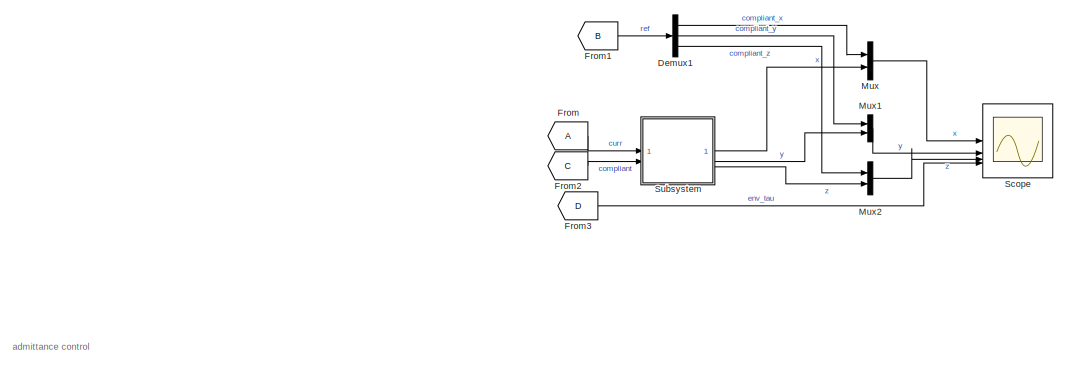
[diagram: root canvas - part 1/4, top right region]
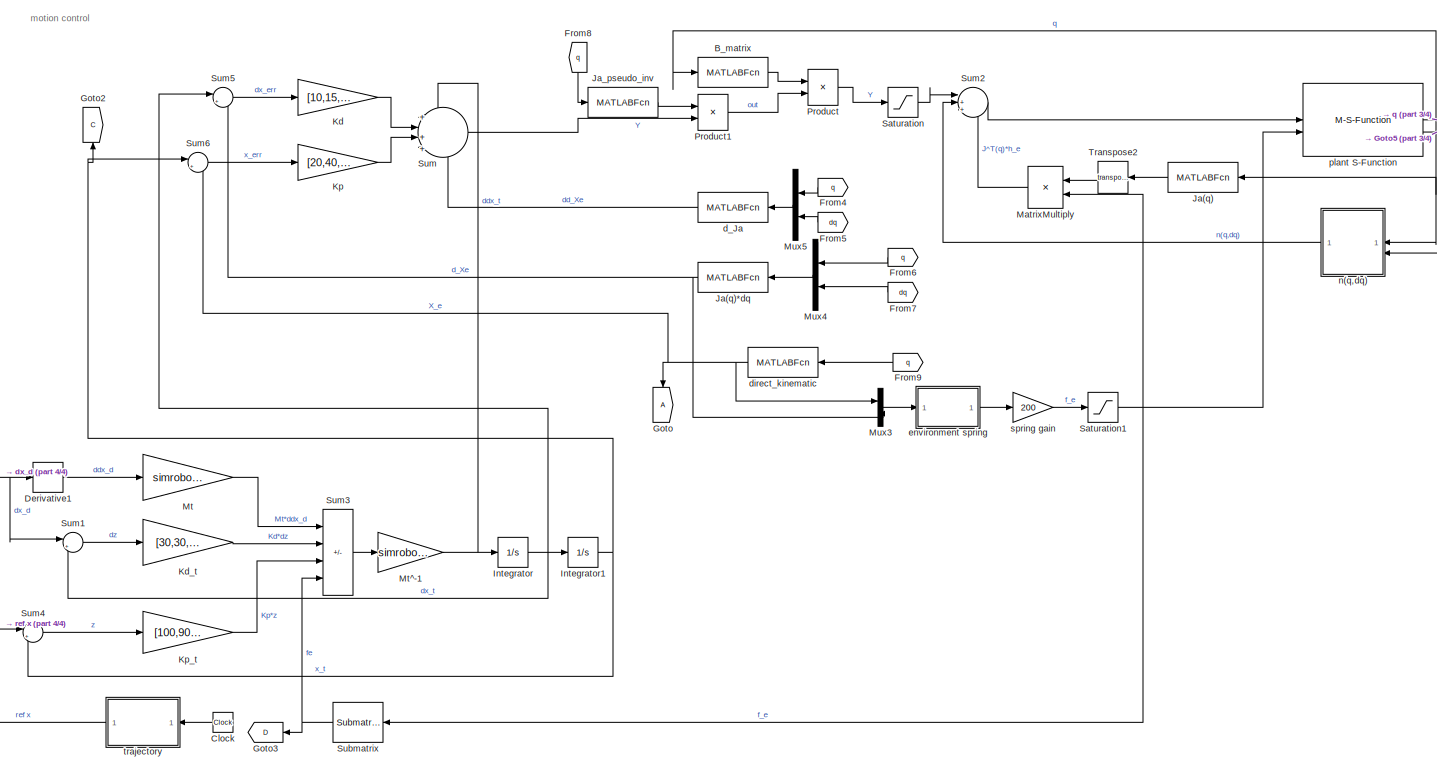
[diagram: root canvas - part 2/4, full width, bottom band]
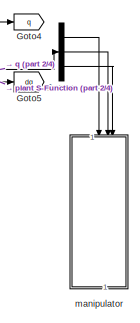
[diagram: root canvas - part 3/4, middle right region]
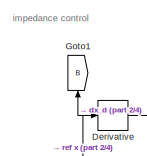
[diagram: root canvas - part 4/4, bottom left region]
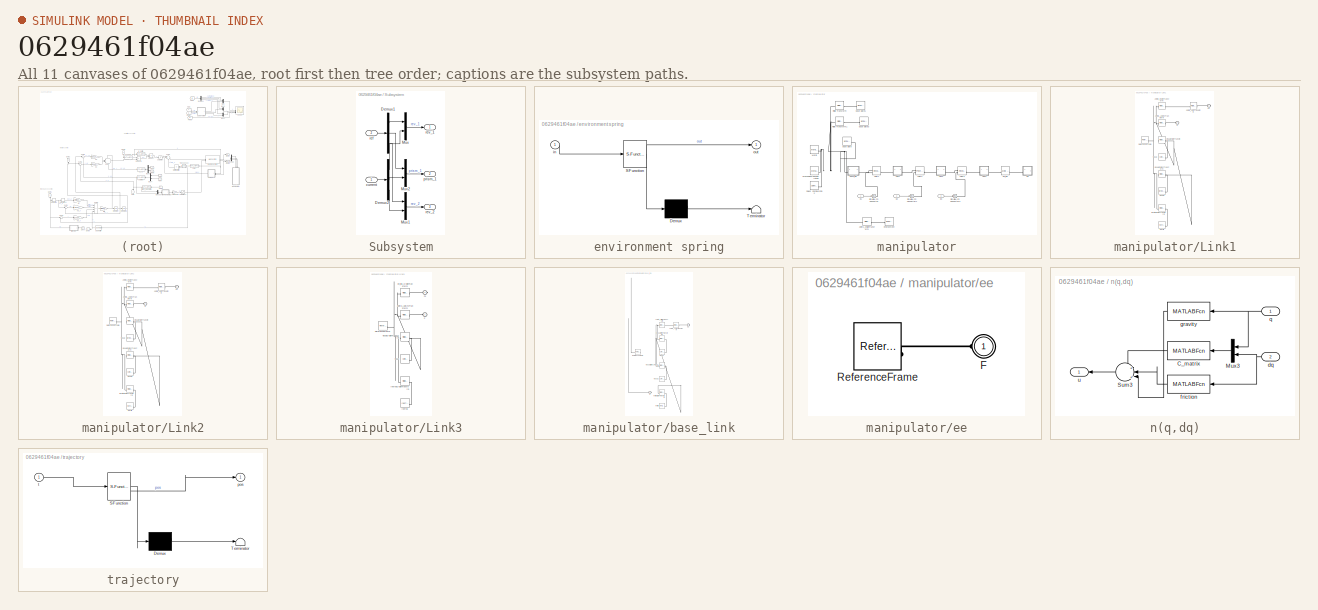
[diagram: thumbnail index - all 11 canvases of the model, root first then tree order]
MODEL slx_0629461f04ae
KIND model
CONFIG AbsTol = auto
CONFIG EnableMultiTasking = off
CONFIG FixedStep = 0.001
CONFIG MaxStep = 0.001
CONFIG MinStep = auto
CONFIG RelTol = auto
CONFIG SampleTimeConstraint = Unconstrained
CONFIG SolverName = FixedStepAuto
CONFIG StartTime = 0.0
CONFIG StopTime = 20
WORKSPACE source: mxarray member
WORKSPACE Var = 0
BLOCK [MATLABFcn] B_matrix
  MATLABFcn = simrobot.dynamic.B_matrix(u(1),u(2),u(3))
  NameLocation = top
  Output1D = off
  OutputSignalType = real
BLOCK [Clock] Clock
  NameLocation = top
BLOCK [Demux] Demux
  Outputs = 3
BLOCK [Demux] Demux1
  Outputs = 3
BLOCK [Derivative] Derivative
BLOCK [Derivative] Derivative1
BLOCK [From] From
BLOCK [From] From1
  GotoTag = B
BLOCK [From] From2
  GotoTag = C
BLOCK [From] From3
  GotoTag = D
BLOCK [From] From4
  GotoTag = q
  NameLocation = top
BLOCK [From] From5
  GotoTag = dq
  NameLocation = top
BLOCK [From] From6
  GotoTag = q
  NameLocation = top
BLOCK [From] From7
  GotoTag = dq
  NameLocation = top
BLOCK [From] From8
  GotoTag = q
  NameLocation = left
BLOCK [From] From9
  GotoTag = q
  NameLocation = top
BLOCK [Goto] Goto
  NameLocation = left
BLOCK [Goto] Goto1
  GotoTag = B
  NameLocation = right
BLOCK [Goto] Goto2
  GotoTag = C
  NameLocation = right
BLOCK [Goto] Goto3
  GotoTag = D
  NameLocation = top
BLOCK [Goto] Goto4
  GotoTag = q
BLOCK [Goto] Goto5
  GotoTag = dq
BLOCK [Integrator] Integrator
BLOCK [Integrator] Integrator1
BLOCK [MATLABFcn] Ja(q)
  MATLABFcn = simrobot.kinematic.jacobian_geometric(u(1),u(2),u(3))
  NameLocation = top
  Output1D = off
  OutputSignalType = real
BLOCK [MATLABFcn] Ja(q)*dq
  MATLABFcn = eye(3,6)*simrobot.kinematic.jacobian_analytical(u(1),u(2),u(3))*[u(4),u(5),u(6)]'
  NameLocation = top
  Output1D = off
  OutputSignalType = real
BLOCK [MATLABFcn] Ja_pseudo_inv
  MATLABFcn = simrobot.kinematic.jacobian_analytical_pseudoinv(u(1),u(2),u(3))
  NameLocation = top
  Output1D = off
  OutputSignalType = real
BLOCK [Gain] Kd
  Gain = [10,15,10]'
BLOCK [Gain] Kd_t
  Gain = [30,30,60]'
BLOCK [Gain] Kp
  Gain = [20,40,10]'
BLOCK [Gain] Kp_t
  Gain = [100,90,90]'
BLOCK [Product] MatrixMultiply
  Multiplication = Matrix(*)
  NameLocation = top
BLOCK [Gain] Mt
  Gain = simrobot.dynamic.Mt
BLOCK [Gain] Mt^-1
  Gain = simrobot.dynamic.inv_Mt
BLOCK [Mux] Mux
  DisplayOption = bar
  Inputs = 2
BLOCK [Mux] Mux1
  DisplayOption = bar
  Inputs = 2
BLOCK [Mux] Mux2
  DisplayOption = bar
  Inputs = 2
BLOCK [Mux] Mux3
  DisplayOption = bar
  Inputs = 2
BLOCK [Mux] Mux4
  DisplayOption = bar
  Inputs = 2
  NameLocation = top
BLOCK [Mux] Mux5
  DisplayOption = bar
  Inputs = 2
  NameLocation = top
BLOCK [Product] Product
  Multiplication = Matrix(*)
BLOCK [Product] Product1
  Multiplication = Matrix(*)
BLOCK [Saturate] Saturation
  LowerLimit = -100
  UpperLimit = 100
BLOCK [Saturate] Saturation1
  LowerLimit = -10
  UpperLimit = 10
BLOCK [Scope] Scope
  Floating = off
  NumInputPorts = 4
  ScopeSpecificationString = Simulink.scopes.TimeScopeBlockCfg('CurrentConfiguration', extmgr.ConfigurationSet(extmgr.Configuration('Core','General UI',true),extmgr.Configuration('Core','Source UI',true),extmgr.Configuration('Sources','WiredSimulink',true),extmgr.Configuration('Visuals','Time Domain',true,'SerializedDisplays',{struct('MinYLimReal','-0.53833','MaxYLimReal','0.02833','YLabelReal','','MinYLimMag','0.00000','MaxY...<+3589ch>
BLOCK [Reference] Submatrix  REF=matrix_library/Submatrix
  LibrarySourceBlock = simulink/Matrix\nOperations/Submatrix
  NameLocation = top
  SourceBlock = matrix_library/Submatrix
  SourceType = Submatrix
BLOCK [SubSystem] Subsystem
BLOCK [Demux] Subsystem/Demux1
  Outputs = 3
BLOCK [Demux] Subsystem/Demux2
  Outputs = 3
BLOCK [Mux] Subsystem/Mux
  DisplayOption = bar
  Inputs = 2
BLOCK [Mux] Subsystem/Mux1
  DisplayOption = bar
  Inputs = 2
BLOCK [Mux] Subsystem/Mux2
  DisplayOption = bar
  Inputs = 2
BLOCK [Inport] Subsystem/current
BLOCK [Outport] Subsystem/prism_1
  Port = 2
BLOCK [Inport] Subsystem/ref
  Port = 2
BLOCK [Outport] Subsystem/rev_1
BLOCK [Outport] Subsystem/rev_2
  Port = 3
BLOCK [Sum] Sum
  Inputs = +|+|+|-
BLOCK [Sum] Sum1
  Inputs = |+-
BLOCK [Sum] Sum2
  Inputs = |+++
BLOCK [Sum] Sum3
  IconShape = rectangular
  Inputs = +++-
BLOCK [Sum] Sum4
  Inputs = |+-
BLOCK [Sum] Sum5
  Inputs = |+-
BLOCK [Sum] Sum6
  Inputs = |+-
BLOCK [Math] Transpose2
  NameLocation = top
  Operator = transpose
BLOCK [MATLABFcn] d_Ja
  MATLABFcn = eye(3,6)*simrobot.kinematic.d_jacobian_analytical(u(1),u(2),u(3),u(4),u(5),u(6))*[u(4),u(5),u(6)]'
  NameLocation = top
  Output1D = off
  OutputSignalType = real
BLOCK [MATLABFcn] direct_kinematic
  MATLABFcn = [1,0,0,0;0,1,0,0;0,0,1,0]*simrobot.kinematic.direct_kin(u(1),u(2),u(3))*[0,0,0,1]'
  NameLocation = top
  Output1D = off
BLOCK [SubSystem] environment spring
  ErrorFcn = Stateflow.Translate.translate
  PermitHierarchicalResolution = ExplicitOnly
  SFBlockType = MATLAB Function
  TreatAsAtomicUnit = on
BLOCK [Demux] environment spring/ Demux 
  Outputs = 1
BLOCK [S-Function] environment spring/ SFunction 
  EnableBusSupport = on
  FunctionName = sf_sfun
  PortCounts = [1 2]
  SFcnIsStateOwnerBlock = off
  SFunctionDeploymentMode = off
  Tag = Stateflow S-Function 1
BLOCK [Terminator] environment spring/ Terminator 
BLOCK [Inport] environment spring/in
BLOCK [Outport] environment spring/out
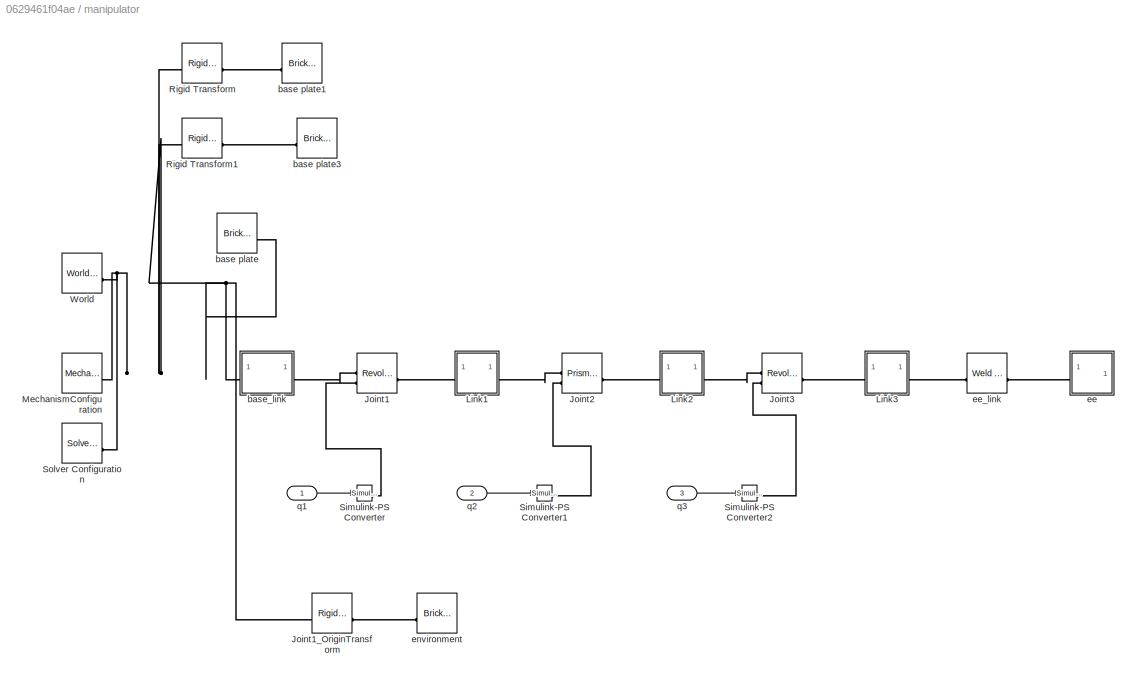
BLOCK [SubSystem] manipulator
BLOCK [Reference] manipulator/Joint1  REF=sm_lib/Joints/Revolute Joint
  SourceBlock = sm_lib/Joints/Revolute Joint
  SourceType = Revolute Joint
BLOCK [Reference] manipulator/Joint1_OriginTransform  REF=sm_lib/Frames and
Transforms/Rigid
Transform
  SourceBlock = sm_lib/Frames and\nTransforms/Rigid\nTransform
  SourceType = Rigid\nTransform
BLOCK [Reference] manipulator/Joint2  REF=sm_lib/Joints/Prismatic
Joint
  SourceBlock = sm_lib/Joints/Prismatic\nJoint
  SourceType = Prismatic\nJoint
BLOCK [Reference] manipulator/Joint3  REF=sm_lib/Joints/Revolute Joint
  SourceBlock = sm_lib/Joints/Revolute Joint
  SourceType = Revolute Joint
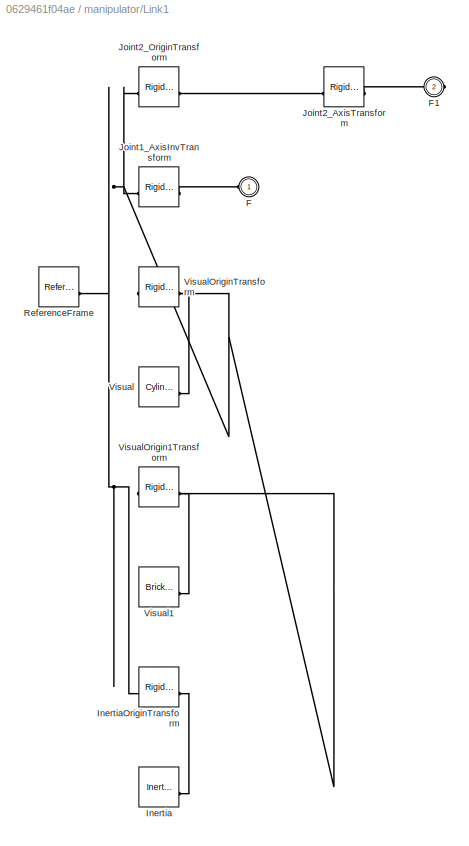
BLOCK [SubSystem] manipulator/Link1
BLOCK [PMIOPort] manipulator/Link1/F
  Side = Left
BLOCK [PMIOPort] manipulator/Link1/F1
  Port = 2
  Side = Right
BLOCK [Reference] manipulator/Link1/Inertia  REF=sm_lib/Body Elements/Inertia
  SourceBlock = sm_lib/Body Elements/Inertia
  SourceType = Inertia
BLOCK [Reference] manipulator/Link1/InertiaOriginTransform  REF=sm_lib/Frames and
Transforms/Rigid
Transform
  SourceBlock = sm_lib/Frames and\nTransforms/Rigid\nTransform
  SourceType = Rigid\nTransform
BLOCK [Reference] manipulator/Link1/Joint1_AxisInvTransform  REF=sm_lib/Frames and
Transforms/Rigid
Transform
  SourceBlock = sm_lib/Frames and\nTransforms/Rigid\nTransform
  SourceType = Rigid\nTransform
BLOCK [Reference] manipulator/Link1/Joint2_AxisTransform  REF=sm_lib/Frames and
Transforms/Rigid
Transform
  SourceBlock = sm_lib/Frames and\nTransforms/Rigid\nTransform
  SourceType = Rigid\nTransform
BLOCK [Reference] manipulator/Link1/Joint2_OriginTransform  REF=sm_lib/Frames and
Transforms/Rigid
Transform
  SourceBlock = sm_lib/Frames and\nTransforms/Rigid\nTransform
  SourceType = Rigid\nTransform
BLOCK [Reference] manipulator/Link1/ReferenceFrame  REF=sm_lib/Frames and
Transforms/Reference
Frame
  SourceBlock = sm_lib/Frames and\nTransforms/Reference\nFrame
  SourceType = Reference\nFrame
BLOCK [Reference] manipulator/Link1/Visual  REF=sm_lib/Body Elements/Cylindrical Solid
  SourceBlock = sm_lib/Body Elements/Cylindrical Solid
  SourceType = Cylindrical Solid
BLOCK [Reference] manipulator/Link1/Visual1  REF=sm_lib/Body Elements/Brick Solid
  SourceBlock = sm_lib/Body Elements/Brick Solid
  SourceType = Brick Solid
BLOCK [Reference] manipulator/Link1/VisualOrigin1Transform  REF=sm_lib/Frames and
Transforms/Rigid
Transform
  SourceBlock = sm_lib/Frames and\nTransforms/Rigid\nTransform
  SourceType = Rigid\nTransform
BLOCK [Reference] manipulator/Link1/VisualOriginTransform  REF=sm_lib/Frames and
Transforms/Rigid
Transform
  SourceBlock = sm_lib/Frames and\nTransforms/Rigid\nTransform
  SourceType = Rigid\nTransform
BLOCK [SubSystem] manipulator/Link2
BLOCK [PMIOPort] manipulator/Link2/F
  Side = Left
BLOCK [PMIOPort] manipulator/Link2/F1
  Port = 2
  Side = Right
BLOCK [Reference] manipulator/Link2/Inertia  REF=sm_lib/Body Elements/Inertia
  SourceBlock = sm_lib/Body Elements/Inertia
  SourceType = Inertia
BLOCK [Reference] manipulator/Link2/InertiaOriginTransform  REF=sm_lib/Frames and
Transforms/Rigid
Transform
  SourceBlock = sm_lib/Frames and\nTransforms/Rigid\nTransform
  SourceType = Rigid\nTransform
BLOCK [Reference] manipulator/Link2/Joint2_AxisInvTransform  REF=sm_lib/Frames and
Transforms/Rigid
Transform
  SourceBlock = sm_lib/Frames and\nTransforms/Rigid\nTransform
  SourceType = Rigid\nTransform
BLOCK [Reference] manipulator/Link2/Joint3_AxisTransform  REF=sm_lib/Frames and
Transforms/Rigid
Transform
  SourceBlock = sm_lib/Frames and\nTransforms/Rigid\nTransform
  SourceType = Rigid\nTransform
BLOCK [Reference] manipulator/Link2/Joint3_OriginTransform  REF=sm_lib/Frames and
Transforms/Rigid
Transform
  SourceBlock = sm_lib/Frames and\nTransforms/Rigid\nTransform
  SourceType = Rigid\nTransform
BLOCK [Reference] manipulator/Link2/ReferenceFrame  REF=sm_lib/Frames and
Transforms/Reference
Frame
  SourceBlock = sm_lib/Frames and\nTransforms/Reference\nFrame
  SourceType = Reference\nFrame
BLOCK [Reference] manipulator/Link2/Visual  REF=sm_lib/Body Elements/Brick Solid
  SourceBlock = sm_lib/Body Elements/Brick Solid
  SourceType = Brick Solid
BLOCK [Reference] manipulator/Link2/Visual1  REF=sm_lib/Body Elements/Cylindrical Solid
  SourceBlock = sm_lib/Body Elements/Cylindrical Solid
  SourceType = Cylindrical Solid
BLOCK [Reference] manipulator/Link2/VisualOrigin1Transform  REF=sm_lib/Frames and
Transforms/Rigid
Transform
  SourceBlock = sm_lib/Frames and\nTransforms/Rigid\nTransform
  SourceType = Rigid\nTransform
BLOCK [Reference] manipulator/Link2/VisualOriginTransform  REF=sm_lib/Frames and
Transforms/Rigid
Transform
  SourceBlock = sm_lib/Frames and\nTransforms/Rigid\nTransform
  SourceType = Rigid\nTransform
BLOCK [SubSystem] manipulator/Link3
BLOCK [PMIOPort] manipulator/Link3/F
  Side = Left
BLOCK [PMIOPort] manipulator/Link3/F1
  Port = 2
  Side = Right
BLOCK [Reference] manipulator/Link3/Inertia  REF=sm_lib/Body Elements/Inertia
  SourceBlock = sm_lib/Body Elements/Inertia
  SourceType = Inertia
BLOCK [Reference] manipulator/Link3/InertiaOriginTransform  REF=sm_lib/Frames and
Transforms/Rigid
Transform
  SourceBlock = sm_lib/Frames and\nTransforms/Rigid\nTransform
  SourceType = Rigid\nTransform
BLOCK [Reference] manipulator/Link3/Joint3_AxisInvTransform  REF=sm_lib/Frames and
Transforms/Rigid
Transform
  SourceBlock = sm_lib/Frames and\nTransforms/Rigid\nTransform
  SourceType = Rigid\nTransform
BLOCK [Reference] manipulator/Link3/ReferenceFrame  REF=sm_lib/Frames and
Transforms/Reference
Frame
  SourceBlock = sm_lib/Frames and\nTransforms/Reference\nFrame
  SourceType = Reference\nFrame
BLOCK [Reference] manipulator/Link3/Visual  REF=sm_lib/Body Elements/Cylindrical Solid
  SourceBlock = sm_lib/Body Elements/Cylindrical Solid
  SourceType = Cylindrical Solid
BLOCK [Reference] manipulator/Link3/VisualOriginTransform  REF=sm_lib/Frames and
Transforms/Rigid
Transform
  SourceBlock = sm_lib/Frames and\nTransforms/Rigid\nTransform
  SourceType = Rigid\nTransform
BLOCK [Reference] manipulator/Link3/ee_link_OriginTransform  REF=sm_lib/Frames and
Transforms/Rigid
Transform
  SourceBlock = sm_lib/Frames and\nTransforms/Rigid\nTransform
  SourceType = Rigid\nTransform
BLOCK [Reference] manipulator/MechanismConfiguration  REF=sm_lib/Utilities/Mechanism
Configuration
  SourceBlock = sm_lib/Utilities/Mechanism\nConfiguration
  SourceType = Mechanism\nConfiguration
BLOCK [Reference] manipulator/Rigid Transform  REF=sm_lib/Frames and
Transforms/Rigid
Transform
  Commented = on
  SourceBlock = sm_lib/Frames and\nTransforms/Rigid\nTransform
  SourceType = Rigid\nTransform
BLOCK [Reference] manipulator/Rigid Transform1  REF=sm_lib/Frames and
Transforms/Rigid
Transform
  SourceBlock = sm_lib/Frames and\nTransforms/Rigid\nTransform
  SourceType = Rigid\nTransform
BLOCK [Reference] manipulator/Simulink-PS Converter  REF=nesl_utility/Simulink-PS
Converter
  SourceBlock = nesl_utility/Simulink-PS\nConverter
  SourceType = Simulink-PS\nConverter
BLOCK [Reference] manipulator/Simulink-PS Converter1  REF=nesl_utility/Simulink-PS
Converter
  SourceBlock = nesl_utility/Simulink-PS\nConverter
  SourceType = Simulink-PS\nConverter
BLOCK [Reference] manipulator/Simulink-PS Converter2  REF=nesl_utility/Simulink-PS
Converter
  SourceBlock = nesl_utility/Simulink-PS\nConverter
  SourceType = Simulink-PS\nConverter
BLOCK [Reference] manipulator/Solver Configuration  REF=nesl_utility/Solver
Configuration
  SourceBlock = nesl_utility/Solver\nConfiguration
  SourceType = Solver\nConfiguration
BLOCK [Reference] manipulator/World  REF=sm_lib/Frames and
Transforms/World Frame
  SourceBlock = sm_lib/Frames and\nTransforms/World Frame
  SourceType = World Frame
BLOCK [Reference] manipulator/base plate  REF=sm_lib/Body Elements/Brick Solid
  SourceBlock = sm_lib/Body Elements/Brick Solid
  SourceType = Brick Solid
BLOCK [Reference] manipulator/base plate1  REF=sm_lib/Body Elements/Brick Solid
  Commented = on
  NameLocation = top
  SourceBlock = sm_lib/Body Elements/Brick Solid
  SourceType = Brick Solid
BLOCK [Reference] manipulator/base plate3  REF=sm_lib/Body Elements/Brick Solid
  NameLocation = top
  SourceBlock = sm_lib/Body Elements/Brick Solid
  SourceType = Brick Solid
BLOCK [SubSystem] manipulator/base_link
BLOCK [PMIOPort] manipulator/base_link/F
  Side = Left
BLOCK [PMIOPort] manipulator/base_link/F1
  Port = 2
  Side = Right
BLOCK [Reference] manipulator/base_link/Inertia  REF=sm_lib/Body Elements/Inertia
  SourceBlock = sm_lib/Body Elements/Inertia
  SourceType = Inertia
BLOCK [Reference] manipulator/base_link/InertiaOriginTransform  REF=sm_lib/Frames and
Transforms/Rigid
Transform
  SourceBlock = sm_lib/Frames and\nTransforms/Rigid\nTransform
  SourceType = Rigid\nTransform
BLOCK [Reference] manipulator/base_link/Joint1_AxisTransform  REF=sm_lib/Frames and
Transforms/Rigid
Transform
  SourceBlock = sm_lib/Frames and\nTransforms/Rigid\nTransform
  SourceType = Rigid\nTransform
BLOCK [Reference] manipulator/base_link/Joint1_OriginTransform  REF=sm_lib/Frames and
Transforms/Rigid
Transform
  SourceBlock = sm_lib/Frames and\nTransforms/Rigid\nTransform
  SourceType = Rigid\nTransform
BLOCK [Reference] manipulator/base_link/ReferenceFrame  REF=sm_lib/Frames and
Transforms/Reference
Frame
  SourceBlock = sm_lib/Frames and\nTransforms/Reference\nFrame
  SourceType = Reference\nFrame
BLOCK [Reference] manipulator/base_link/Visual  REF=sm_lib/Body Elements/Cylindrical Solid
  SourceBlock = sm_lib/Body Elements/Cylindrical Solid
  SourceType = Cylindrical Solid
BLOCK [Reference] manipulator/base_link/Visual1  REF=sm_lib/Body Elements/Cylindrical Solid
  SourceBlock = sm_lib/Body Elements/Cylindrical Solid
  SourceType = Cylindrical Solid
BLOCK [Reference] manipulator/base_link/VisualOrigin1Transform  REF=sm_lib/Frames and
Transforms/Rigid
Transform
  SourceBlock = sm_lib/Frames and\nTransforms/Rigid\nTransform
  SourceType = Rigid\nTransform
BLOCK [Reference] manipulator/base_link/VisualOriginTransform  REF=sm_lib/Frames and
Transforms/Rigid
Transform
  SourceBlock = sm_lib/Frames and\nTransforms/Rigid\nTransform
  SourceType = Rigid\nTransform
BLOCK [SubSystem] manipulator/ee
BLOCK [PMIOPort] manipulator/ee/F
  Side = Left
BLOCK [Reference] manipulator/ee/ReferenceFrame  REF=sm_lib/Frames and
Transforms/Reference
Frame
  SourceBlock = sm_lib/Frames and\nTransforms/Reference\nFrame
  SourceType = Reference\nFrame
BLOCK [Reference] manipulator/ee_link  REF=sm_lib/Joints/Weld Joint
  SourceBlock = sm_lib/Joints/Weld Joint
  SourceType = Weld Joint
BLOCK [Reference] manipulator/environment  REF=sm_lib/Body Elements/Brick Solid
  NameLocation = top
  SourceBlock = sm_lib/Body Elements/Brick Solid
  SourceType = Brick Solid
BLOCK [Inport] manipulator/q1
BLOCK [Inport] manipulator/q2
  Port = 2
BLOCK [Inport] manipulator/q3
  Port = 3
BLOCK [SubSystem] n(q,dq)
  NameLocation = top
BLOCK [MATLABFcn] n(q,dq)/C_matrix
  MATLABFcn = simrobot.dynamic.C_matrix(u(1),u(2),u(3),u(4),u(5),u(6))*[u(4),u(5),u(6)]'
  NameLocation = top
  Output1D = off
BLOCK [Mux] n(q,dq)/Mux3
  DisplayOption = bar
  Inputs = 2
  NameLocation = top
BLOCK [Sum] n(q,dq)/Sum3
  Inputs = +|+|+|
  NameLocation = top
BLOCK [Inport] n(q,dq)/dq
  Port = 2
BLOCK [MATLABFcn] n(q,dq)/friction
  MATLABFcn = diag(simrobot.dynamic.Fv)*[u(1),u(2),u(3)]'
  NameLocation = top
BLOCK [MATLABFcn] n(q,dq)/gravity
  MATLABFcn = simrobot.dynamic.grad_U(u(1),u(2),u(3))
  NameLocation = top
  Output1D = off
BLOCK [Inport] n(q,dq)/q
  NameLocation = top
BLOCK [Outport] n(q,dq)/u
  NameLocation = top
BLOCK [M-S-Function] plant S-Function
  FunctionName = robot_s_function
  Parameters = arg_1,arg_2,arg_3
BLOCK [Gain] spring gain
  Gain = 200
BLOCK [SubSystem] trajectory
  ErrorFcn = Stateflow.Translate.translate
  NameLocation = top
  PermitHierarchicalResolution = ExplicitOnly
  SFBlockType = MATLAB Function
  TreatAsAtomicUnit = on
BLOCK [Demux] trajectory/ Demux 
  Outputs = 1
BLOCK [S-Function] trajectory/ SFunction 
  EnableBusSupport = on
  FunctionName = sf_sfun
  PortCounts = [1 2]
  SFcnIsStateOwnerBlock = off
  SFunctionDeploymentMode = off
  Tag = Stateflow S-Function 2
BLOCK [Terminator] trajectory/ Terminator 
BLOCK [Outport] trajectory/pos
BLOCK [Inport] trajectory/t
ANNOTATION (root): admittance control
ANNOTATION (root): impedance control
ANNOTATION (root): motion control
LINE B_matrix:1 -> Product:1
LINE Clock:1 -> trajectory:1
LINE Demux1:1 -> Mux:1
LINE Demux1:2 -> Mux1:1
LINE Demux1:3 -> Mux2:1
LINE Demux:1 -> manipulator:1
LINE Demux:2 -> manipulator:2
LINE Demux:3 -> manipulator:3
LINE Derivative1:1 -> Mt:1
NET Derivative:1 -> Derivative1:1, Sum1:1
LINE From1:1 -> Demux1:1
LINE From2:1 -> Subsystem:2
LINE From3:1 -> Scope:4
LINE From4:1 -> Mux5:1
LINE From5:1 -> Mux5:2
LINE From6:1 -> Mux4:1
LINE From7:1 -> Mux4:2
LINE From8:1 -> Ja_pseudo_inv:1
LINE From9:1 -> direct_kinematic:1
LINE From:1 -> Subsystem:1
NET Integrator1:1 -> Goto2:1, Sum4:2, Sum6:1
NET Integrator:1 -> Integrator1:1, Sum1:2, Sum5:1
NET Ja(q)*dq:1 -> Mux3:2, Sum5:2
LINE Ja(q):1 -> Transpose2:1
LINE Ja_pseudo_inv:1 -> Product1:1
LINE Kd:1 -> Sum:2
LINE Kd_t:1 -> Sum3:2
LINE Kp:1 -> Sum:3
LINE Kp_t:1 -> Sum3:3
LINE MatrixMultiply:1 -> Sum2:3
LINE Mt:1 -> Sum3:1
NET Mt^-1:1 -> Integrator:1, Sum:1
LINE Mux1:1 -> Scope:2
LINE Mux2:1 -> Scope:3
LINE Mux3:1 -> environment spring:1
LINE Mux4:1 -> Ja(q)*dq:1
LINE Mux5:1 -> d_Ja:1
LINE Mux:1 -> Scope:1
LINE Product1:1 -> Product:2
LINE Product:1 -> Saturation:1
NET Saturation1:1 -> MatrixMultiply:2, Submatrix:1, plant S-Function:2
LINE Saturation:1 -> Sum2:1
NET Submatrix:1 -> Goto3:1, Sum3:4
LINE Subsystem/Demux1:1 -> Subsystem/Mux:1
LINE Subsystem/Demux1:2 -> Subsystem/Mux2:1
LINE Subsystem/Demux1:3 -> Subsystem/Mux1:1
LINE Subsystem/Demux2:1 -> Subsystem/Mux:2
LINE Subsystem/Demux2:2 -> Subsystem/Mux2:2
LINE Subsystem/Demux2:3 -> Subsystem/Mux1:2
LINE Subsystem/Mux1:1 -> Subsystem/rev_2:1
LINE Subsystem/Mux2:1 -> Subsystem/prism_1:1
LINE Subsystem/Mux:1 -> Subsystem/rev_1:1
LINE Subsystem/current:1 -> Subsystem/Demux2:1
LINE Subsystem/ref:1 -> Subsystem/Demux1:1
LINE Subsystem:1 -> Mux:2
LINE Subsystem:2 -> Mux1:2
LINE Subsystem:3 -> Mux2:2
LINE Sum1:1 -> Kd_t:1
LINE Sum2:1 -> plant S-Function:1
LINE Sum3:1 -> Mt^-1:1
LINE Sum4:1 -> Kp_t:1
LINE Sum5:1 -> Kd:1
LINE Sum6:1 -> Kp:1
LINE Sum:1 -> Product1:2
LINE Transpose2:1 -> MatrixMultiply:1
LINE d_Ja:1 -> Sum:4
NET direct_kinematic:1 -> Goto:1, Mux3:1, Sum6:2
LINE environment spring:1 -> spring gain:1
LINE manipulator/q1:1 -> manipulator/Simulink-PS Converter:1
LINE manipulator/q2:1 -> manipulator/Simulink-PS Converter1:1
LINE manipulator/q3:1 -> manipulator/Simulink-PS Converter2:1
LINE n(q,dq)/C_matrix:1 -> n(q,dq)/Sum3:1
LINE n(q,dq)/Mux3:1 -> n(q,dq)/C_matrix:1
LINE n(q,dq)/Sum3:1 -> n(q,dq)/u:1
NET n(q,dq)/dq:1 -> n(q,dq)/Mux3:2, n(q,dq)/friction:1
LINE n(q,dq)/friction:1 -> n(q,dq)/Sum3:2
LINE n(q,dq)/gravity:1 -> n(q,dq)/Sum3:3
NET n(q,dq)/q:1 -> n(q,dq)/Mux3:1, n(q,dq)/gravity:1
LINE n(q,dq):1 -> Sum2:2
NET plant S-Function:1 -> B_matrix:1, Demux:1, Goto4:1, Ja(q):1, n(q,dq):1
NET plant S-Function:2 -> Goto5:1, n(q,dq):2
LINE spring gain:1 -> Saturation1:1
NET trajectory:1 -> Derivative:1, Goto1:1, Sum4:1
PLINE manipulator/Joint1:LConn1 -- manipulator/base_link:RConn1
PLINE manipulator/Joint1:LConn2 -- manipulator/Simulink-PS Converter:RConn1
PLINE manipulator/Joint1:RConn1 -- manipulator/Link1:LConn1
PNET net1: manipulator/Joint1_OriginTransform:LConn1 -- manipulator/MechanismConfiguration:RConn1 -- manipulator/Rigid Transform1:LConn1 -- manipulator/Rigid Transform:LConn1 -- manipulator/Solver Configuration:RConn1 -- manipulator/World:RConn1 -- manipulator/base plate:RConn1 -- manipulator/base_link:LConn1
PLINE manipulator/Joint1_OriginTransform:RConn1 -- manipulator/environment:RConn1
PLINE manipulator/Joint2:LConn1 -- manipulator/Link1:RConn1
PLINE manipulator/Joint2:LConn2 -- manipulator/Simulink-PS Converter1:RConn1
PLINE manipulator/Joint2:RConn1 -- manipulator/Link2:LConn1
PLINE manipulator/Joint3:LConn1 -- manipulator/Link2:RConn1
PLINE manipulator/Joint3:LConn2 -- manipulator/Simulink-PS Converter2:RConn1
PLINE manipulator/Joint3:RConn1 -- manipulator/Link3:LConn1
PLINE manipulator/Link1/F1:RConn1 -- manipulator/Link1/Joint2_AxisTransform:RConn1
PLINE manipulator/Link1/F:RConn1 -- manipulator/Link1/Joint1_AxisInvTransform:RConn1
PLINE manipulator/Link1/Inertia:RConn1 -- manipulator/Link1/InertiaOriginTransform:RConn1
PNET net2: manipulator/Link1/InertiaOriginTransform:LConn1 -- manipulator/Link1/Joint1_AxisInvTransform:LConn1 -- manipulator/Link1/Joint2_OriginTransform:LConn1 -- manipulator/Link1/ReferenceFrame:RConn1 -- manipulator/Link1/VisualOrigin1Transform:LConn1 -- manipulator/Link1/VisualOriginTransform:LConn1
PLINE manipulator/Link1/Joint2_AxisTransform:LConn1 -- manipulator/Link1/Joint2_OriginTransform:RConn1
PLINE manipulator/Link1/Visual1:RConn1 -- manipulator/Link1/VisualOrigin1Transform:RConn1
PLINE manipulator/Link1/Visual:RConn1 -- manipulator/Link1/VisualOriginTransform:RConn1
PLINE manipulator/Link2/F1:RConn1 -- manipulator/Link2/Joint3_AxisTransform:RConn1
PLINE manipulator/Link2/F:RConn1 -- manipulator/Link2/Joint2_AxisInvTransform:RConn1
PLINE manipulator/Link2/Inertia:RConn1 -- manipulator/Link2/InertiaOriginTransform:RConn1
PNET net3: manipulator/Link2/InertiaOriginTransform:LConn1 -- manipulator/Link2/Joint2_AxisInvTransform:LConn1 -- manipulator/Link2/Joint3_OriginTransform:LConn1 -- manipulator/Link2/ReferenceFrame:RConn1 -- manipulator/Link2/VisualOrigin1Transform:LConn1 -- manipulator/Link2/VisualOriginTransform:LConn1
PLINE manipulator/Link2/Joint3_AxisTransform:LConn1 -- manipulator/Link2/Joint3_OriginTransform:RConn1
PLINE manipulator/Link2/Visual1:RConn1 -- manipulator/Link2/VisualOrigin1Transform:RConn1
PLINE manipulator/Link2/Visual:RConn1 -- manipulator/Link2/VisualOriginTransform:RConn1
PLINE manipulator/Link3/F1:RConn1 -- manipulator/Link3/ee_link_OriginTransform:RConn1
PLINE manipulator/Link3/F:RConn1 -- manipulator/Link3/Joint3_AxisInvTransform:RConn1
PLINE manipulator/Link3/Inertia:RConn1 -- manipulator/Link3/InertiaOriginTransform:RConn1
PNET net4: manipulator/Link3/InertiaOriginTransform:LConn1 -- manipulator/Link3/Joint3_AxisInvTransform:LConn1 -- manipulator/Link3/ReferenceFrame:RConn1 -- manipulator/Link3/VisualOriginTransform:LConn1 -- manipulator/Link3/ee_link_OriginTransform:LConn1
PLINE manipulator/Link3/Visual:RConn1 -- manipulator/Link3/VisualOriginTransform:RConn1
PLINE manipulator/Link3:RConn1 -- manipulator/ee_link:LConn1
PLINE manipulator/Rigid Transform1:RConn1 -- manipulator/base plate3:RConn1
PLINE manipulator/Rigid Transform:RConn1 -- manipulator/base plate1:RConn1
PLINE manipulator/base_link/F1:RConn1 -- manipulator/base_link/Joint1_AxisTransform:RConn1
PNET net5: manipulator/base_link/F:RConn1 -- manipulator/base_link/InertiaOriginTransform:LConn1 -- manipulator/base_link/Joint1_OriginTransform:LConn1 -- manipulator/base_link/ReferenceFrame:RConn1 -- manipulator/base_link/VisualOrigin1Transform:LConn1 -- manipulator/base_link/VisualOriginTransform:LConn1
PLINE manipulator/base_link/Inertia:RConn1 -- manipulator/base_link/InertiaOriginTransform:RConn1
PLINE manipulator/base_link/Joint1_AxisTransform:LConn1 -- manipulator/base_link/Joint1_OriginTransform:RConn1
PLINE manipulator/base_link/Visual1:RConn1 -- manipulator/base_link/VisualOrigin1Transform:RConn1
PLINE manipulator/base_link/Visual:RConn1 -- manipulator/base_link/VisualOriginTransform:RConn1
PLINE manipulator/ee/F:RConn1 -- manipulator/ee/ReferenceFrame:RConn1
PLINE manipulator/ee:LConn1 -- manipulator/ee_link:RConn1
note: NET lines group one-source signal fan-out (src -> all destinations, sorted); 1:1 wires keep LINE; PNET lines group multi-terminal physical nets as a canonical sorted terminal list (undirected conserving connections); 2-terminal nets keep the pairwise PLINE form
CHART trajectory states=1 transitions=1
  STATE_LABEL 'eML_blk_kernel()'
  STATE_LABEL 'SCRIPT:\nfunction pos = fcn(t)\n    % Circular trajectory generator\n    r = 0.05; % Radius\n    w = 2;  % Angular velocity\n\n\n   % k = 5; % Controls the steepness of the ramp\n   % smooth_ramp = 1 / (1 + exp(-k * (t - 0.5)));\n\n    % Generate trajectory\n    %x =  r * cos(w*t+0.1); % X-coordinate\n    x=-0.51;\n    y =  r*cos(w*t);           % Y-coordinate (constant)\n    z =  (r * sin(w*t))+0.45; % Z-coord...<+66ch>'
CHART environment spring states=1 transitions=1
  STATE_LABEL 'eML_blk_kernel()'
  STATE_LABEL "SCRIPT:\nfunction out = fcn(in)\n\n%plane normal\nv=[1,0,0];\n%offset along normal\nd=-0.35;\n\nee_position=in(1:3);\n\ndistance=double(v(1)*ee_position(1)+v(2)*ee_position(2)+v(3)*ee_position(3)-d);\n\ndamping= in(4:6);\n\nif distance<0\n    force=-[abs(distance),0,0,0,0,0]';\n    force2=[damping(1),damping(2),damping(3),0,0,0]';\nelse\n\n    force=[0,0,0,0,0,0]';\n    force2=[0,0,0,0,0,0]';\nend\n\nout = force+(0.1.*f...<+8ch>"
CHART  states=0 transitions=0
CHART  states=0 transitions=0
